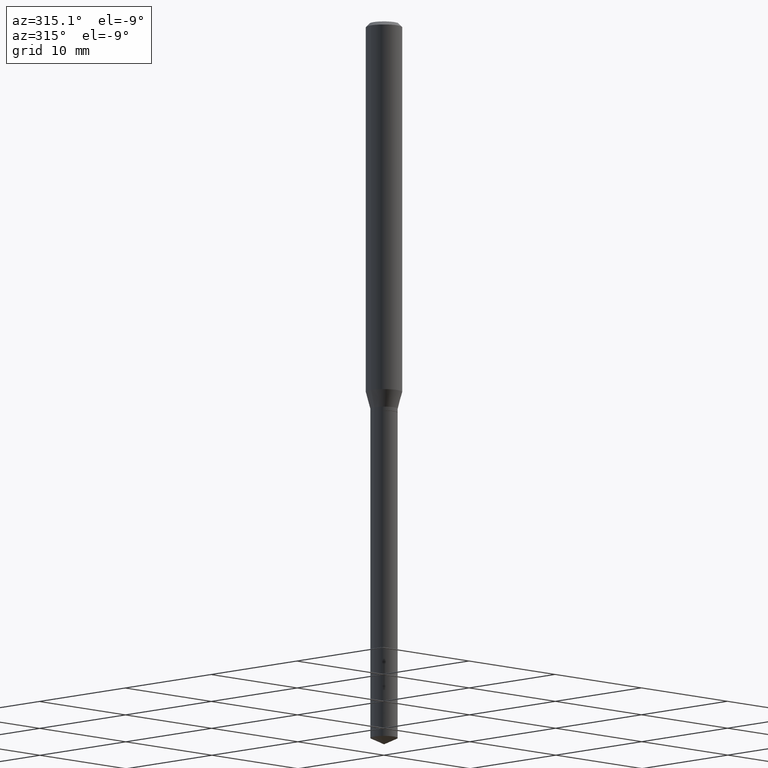
[diagram: clean part render]
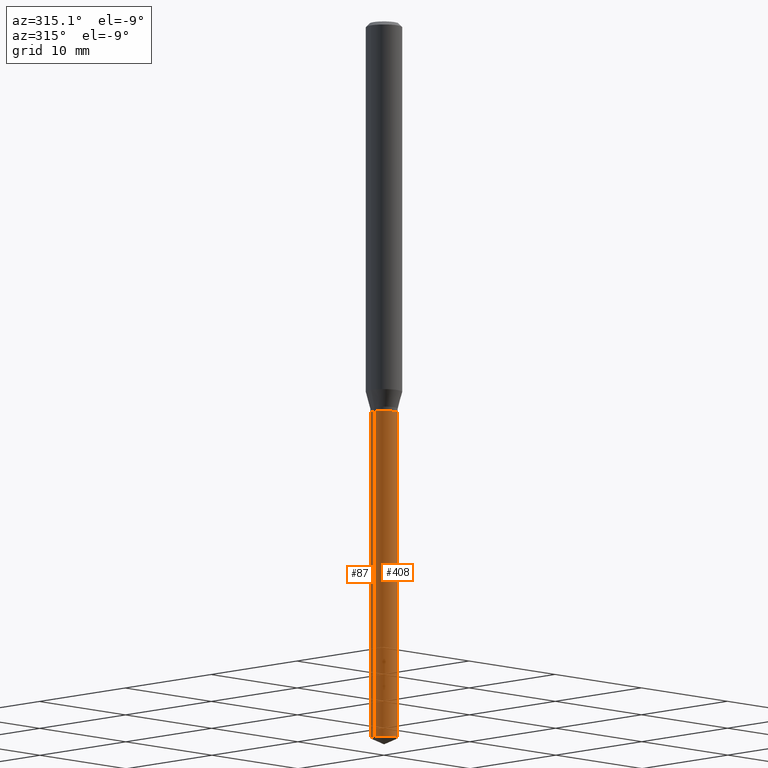
[diagram: same view with one multi-face feature highlighted, each face labeled with its STEP entity id]
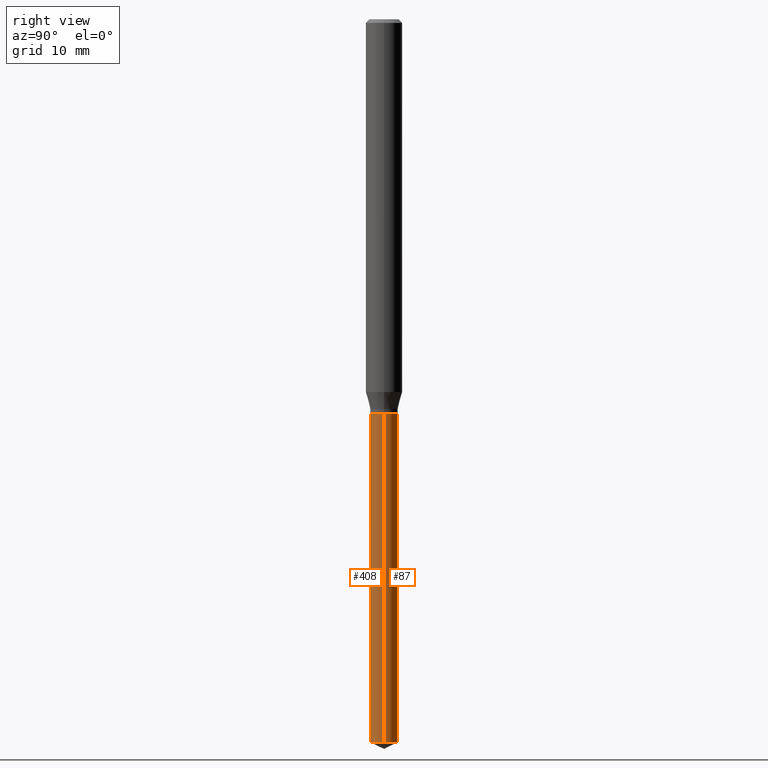
[diagram: same view with one multi-face feature highlighted, each face labeled with its STEP entity id]
A machine part, auxiliary view. The highlighted faces form ONE feature: a constant-radius fillet chain: 2 tangent blend faces with common blend radius 1.1252 mm. The faces share edges in the B-rep.
A second angle (right view) of the same feature is appended — it is thin or edge-on in the first view.
Their STEP definitions:
[1] entity #87 (Cylinder):
#48 = ORIENTED_EDGE ( 'NONE', *, *, #125, .F. ) ;
#50 = CARTESIAN_POINT ( 'NONE',  ( -0.04429999999999999910, -5.999124164633942099E-15, -1.275400000000000311 ) ) ;
#67 = VERTEX_POINT ( 'NONE', #210 ) ;
#84 = CYLINDRICAL_SURFACE ( 'NONE', #438, 0.04429999999999999910 ) ;
#87 = ADVANCED_FACE ( 'NONE', ( #284 ), #84, .T. ) ;
#94 = CARTESIAN_POINT ( 'NONE',  ( 3.118950915408523626E-29, -4.453035299560548797E-15, -1.275400000000000311 ) ) ;
#99 = VERTEX_POINT ( 'NONE', #204 ) ;
#100 = DIRECTION ( 'NONE',  ( 1.000000000000000000, -6.982962677686269077E-15, 0.000000000000000000 ) ) ;
#107 = ORIENTED_EDGE ( 'NONE', *, *, #208, .T. ) ;
#118 = VERTEX_POINT ( 'NONE', #50 ) ;
#125 = EDGE_CURVE ( 'NONE', #99, #118, #364, .T. ) ;
#133 = DIRECTION ( 'NONE',  ( 1.000000000000000000, -6.982962677686269077E-15, 0.000000000000000000 ) ) ;
#138 = LINE ( 'NONE', #370, #429 ) ;
#143 = CARTESIAN_POINT ( 'NONE',  ( 5.725680221347117002E-29, -8.174753893590783463E-15, -2.341342570743733642 ) ) ;
#187 = VERTEX_POINT ( 'NONE', #341 ) ;
#204 = CARTESIAN_POINT ( 'NONE',  ( 0.04429999999999999910, -4.762380546182051062E-15, -1.275400000000000311 ) ) ;
#208 = EDGE_CURVE ( 'NONE', #67, #118, #138, .T. ) ;
#210 = CARTESIAN_POINT ( 'NONE',  ( -0.04430000000000000604, -7.859983461649060616E-15, -2.341342570743733642 ) ) ;
#219 = EDGE_LOOP ( 'NONE', ( #374, #107, #48, #264 ) ) ;
#224 = EDGE_CURVE ( 'NONE', #187, #67, #489, .T. ) ;
#254 = AXIS2_PLACEMENT_3D ( 'NONE', #143, #437, #100 ) ;
#264 = ORIENTED_EDGE ( 'NONE', *, *, #411, .F. ) ;
#273 = DIRECTION ( 'NONE',  ( -2.445468806185136877E-29, 3.491481338843145188E-15, 1.000000000000000000 ) ) ;
#284 = FACE_OUTER_BOUND ( 'NONE', #219, .T. ) ;
#286 = VECTOR ( 'NONE', #273, 39.37007874015748143 ) ;
#341 = CARTESIAN_POINT ( 'NONE',  ( 0.04430000000000000604, -8.484099140212286517E-15, -2.341342570743733642 ) ) ;
#364 = CIRCLE ( 'NONE', #472, 0.04429999999999999910 ) ;
#370 = CARTESIAN_POINT ( 'NONE',  ( -0.04429999999999999910, -4.138264867618825161E-15, -1.275400000000000311 ) ) ;
#374 = ORIENTED_EDGE ( 'NONE', *, *, #224, .T. ) ;
#387 = DIRECTION ( 'NONE',  ( -2.445468806185136597E-29, 3.491481338843145583E-15, 1.000000000000000000 ) ) ;
#411 = EDGE_CURVE ( 'NONE', #187, #99, #465, .T. ) ;
#418 = CARTESIAN_POINT ( 'NONE',  ( 0.04429999999999999910, -4.762380546182051062E-15, -1.275400000000000311 ) ) ;
#426 = DIRECTION ( 'NONE',  ( -2.445468806185136597E-29, 3.491481338843145583E-15, 1.000000000000000000 ) ) ;
#429 = VECTOR ( 'NONE', #482, 39.37007874015748143 ) ;
#431 = DIRECTION ( 'NONE',  ( 1.000000000000000000, -6.982962677686269077E-15, 0.000000000000000000 ) ) ;
#432 = CARTESIAN_POINT ( 'NONE',  ( 3.118950915408523626E-29, -4.453035299560548797E-15, -1.275400000000000311 ) ) ;
#437 = DIRECTION ( 'NONE',  ( -2.445468806185136597E-29, 3.491481338843145583E-15, 1.000000000000000000 ) ) ;
#438 = AXIS2_PLACEMENT_3D ( 'NONE', #432, #387, #431 ) ;
#465 = LINE ( 'NONE', #418, #286 ) ;
#472 = AXIS2_PLACEMENT_3D ( 'NONE', #94, #426, #133 ) ;
#482 = DIRECTION ( 'NONE',  ( -2.445468806185136877E-29, 3.491481338843145188E-15, 1.000000000000000000 ) ) ;
#489 = CIRCLE ( 'NONE', #254, 0.04429999999999999910 ) ;
[2] entity #408 (Cylinder):
#18 = DIRECTION ( 'NONE',  ( -2.445468806185136597E-29, 3.491481338843145583E-15, 1.000000000000000000 ) ) ;
#20 = DIRECTION ( 'NONE',  ( 1.000000000000000000, -6.982962677686269077E-15, 0.000000000000000000 ) ) ;
#23 = CARTESIAN_POINT ( 'NONE',  ( 3.118950915408523626E-29, -4.453035299560548797E-15, -1.275400000000000311 ) ) ;
#30 = ORIENTED_EDGE ( 'NONE', *, *, #208, .F. ) ;
#45 = EDGE_LOOP ( 'NONE', ( #30, #272, #268, #173 ) ) ;
#50 = CARTESIAN_POINT ( 'NONE',  ( -0.04429999999999999910, -5.999124164633942099E-15, -1.275400000000000311 ) ) ;
#59 = CIRCLE ( 'NONE', #167, 0.04429999999999999910 ) ;
#67 = VERTEX_POINT ( 'NONE', #210 ) ;
#91 = AXIS2_PLACEMENT_3D ( 'NONE', #461, #119, #388 ) ;
#99 = VERTEX_POINT ( 'NONE', #204 ) ;
#114 = EDGE_CURVE ( 'NONE', #67, #187, #222, .T. ) ;
#118 = VERTEX_POINT ( 'NONE', #50 ) ;
#119 = DIRECTION ( 'NONE',  ( -2.445468806185136597E-29, 3.491481338843145583E-15, 1.000000000000000000 ) ) ;
#138 = LINE ( 'NONE', #370, #429 ) ;
#167 = AXIS2_PLACEMENT_3D ( 'NONE', #23, #330, #298 ) ;
#173 = ORIENTED_EDGE ( 'NONE', *, *, #241, .F. ) ;
#187 = VERTEX_POINT ( 'NONE', #341 ) ;
#204 = CARTESIAN_POINT ( 'NONE',  ( 0.04429999999999999910, -4.762380546182051062E-15, -1.275400000000000311 ) ) ;
#208 = EDGE_CURVE ( 'NONE', #67, #118, #138, .T. ) ;
#210 = CARTESIAN_POINT ( 'NONE',  ( -0.04430000000000000604, -7.859983461649060616E-15, -2.341342570743733642 ) ) ;
#222 = CIRCLE ( 'NONE', #301, 0.04429999999999999910 ) ;
#232 = CYLINDRICAL_SURFACE ( 'NONE', #91, 0.04429999999999999910 ) ;
#241 = EDGE_CURVE ( 'NONE', #118, #99, #59, .T. ) ;
#268 = ORIENTED_EDGE ( 'NONE', *, *, #411, .T. ) ;
#272 = ORIENTED_EDGE ( 'NONE', *, *, #114, .T. ) ;
#273 = DIRECTION ( 'NONE',  ( -2.445468806185136877E-29, 3.491481338843145188E-15, 1.000000000000000000 ) ) ;
#278 = CARTESIAN_POINT ( 'NONE',  ( 5.725680221347117002E-29, -8.174753893590783463E-15, -2.341342570743733642 ) ) ;
#286 = VECTOR ( 'NONE', #273, 39.37007874015748143 ) ;
#298 = DIRECTION ( 'NONE',  ( 1.000000000000000000, -6.982962677686269077E-15, 0.000000000000000000 ) ) ;
#301 = AXIS2_PLACEMENT_3D ( 'NONE', #278, #18, #20 ) ;
#330 = DIRECTION ( 'NONE',  ( -2.445468806185136597E-29, 3.491481338843145583E-15, 1.000000000000000000 ) ) ;
#341 = CARTESIAN_POINT ( 'NONE',  ( 0.04430000000000000604, -8.484099140212286517E-15, -2.341342570743733642 ) ) ;
#370 = CARTESIAN_POINT ( 'NONE',  ( -0.04429999999999999910, -4.138264867618825161E-15, -1.275400000000000311 ) ) ;
#388 = DIRECTION ( 'NONE',  ( 1.000000000000000000, -6.982962677686269077E-15, 0.000000000000000000 ) ) ;
#408 = ADVANCED_FACE ( 'NONE', ( #457 ), #232, .T. ) ;
#411 = EDGE_CURVE ( 'NONE', #187, #99, #465, .T. ) ;
#418 = CARTESIAN_POINT ( 'NONE',  ( 0.04429999999999999910, -4.762380546182051062E-15, -1.275400000000000311 ) ) ;
#429 = VECTOR ( 'NONE', #482, 39.37007874015748143 ) ;
#457 = FACE_OUTER_BOUND ( 'NONE', #45, .T. ) ;
#461 = CARTESIAN_POINT ( 'NONE',  ( 3.118950915408523626E-29, -4.453035299560548797E-15, -1.275400000000000311 ) ) ;
#465 = LINE ( 'NONE', #418, #286 ) ;
#482 = DIRECTION ( 'NONE',  ( -2.445468806185136877E-29, 3.491481338843145188E-15, 1.000000000000000000 ) ) ;